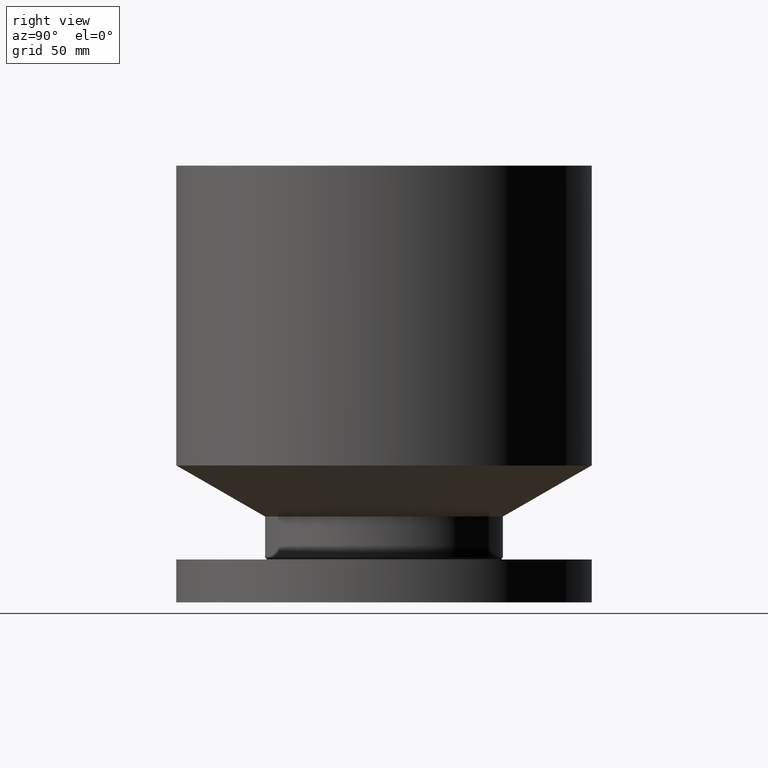
[diagram: clean part render]
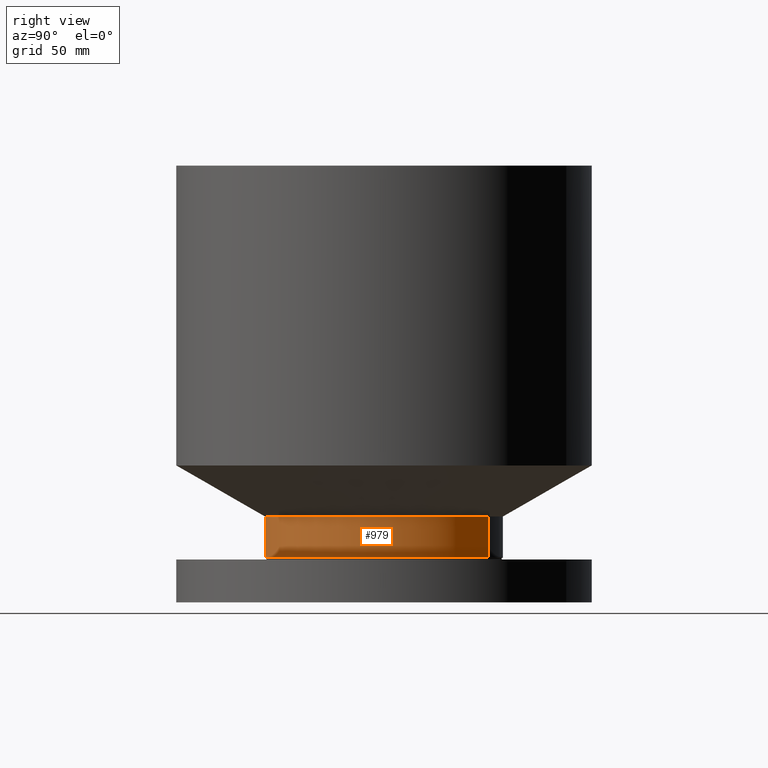
[diagram: same view with one face highlighted and labeled with its STEP entity id]
A machine part, right view. The second image highlights one B-rep face of the part: STEP entity #979.
In plain terms, the highlighted cylindrical surface (partial cylindrical patch) has radius 61.976 mm, axis along (0, 0, -1).
Its self-contained STEP definition (entity closure, byte-faithful):
#741=AXIS2_PLACEMENT_3D('Circle Axis2P3D',#739,#740,$) ;
#952=AXIS2_PLACEMENT_3D('Cylinder Axis2P3D',#949,#950,#951) ;
#963=AXIS2_PLACEMENT_3D('Circle Axis2P3D',#961,#962,$) ;
#736=CARTESIAN_POINT('Vertex',(1.1697983142,2.14130145102,0.918480762117)) ;
#739=CARTESIAN_POINT('Axis2P3D Location',(0.,0.,0.918480762117)) ;
#743=CARTESIAN_POINT('Vertex',(-1.1697983142,-2.14130145102,0.918480762117)) ;
#949=CARTESIAN_POINT('Axis2P3D Location',(0.,0.,4.43750000002)) ;
#954=CARTESIAN_POINT('Line Origine',(1.1697983142,2.14130145102,1.33799038106)) ;
#958=CARTESIAN_POINT('Vertex',(1.1697983142,2.14130145102,1.75750000001)) ;
#961=CARTESIAN_POINT('Axis2P3D Location',(0.,0.,1.75750000001)) ;
#965=CARTESIAN_POINT('Vertex',(-1.1697983142,-2.14130145102,1.75750000001)) ;
#968=CARTESIAN_POINT('Line Origine',(-1.1697983142,-2.14130145102,1.33799038106)) ;
#740=DIRECTION('Axis2P3D Direction',(-0.,0.,0.0393700787402)) ;
#950=DIRECTION('Axis2P3D Direction',(0.,0.,-0.0393700787402)) ;
#951=DIRECTION('Axis2P3D XDirection',(-0.0188750212049,-0.0345504945626,0.)) ;
#955=DIRECTION('Vector Direction',(0.,0.,-0.0393700787402)) ;
#962=DIRECTION('Axis2P3D Direction',(0.,0.,-0.0393700787402)) ;
#969=DIRECTION('Vector Direction',(0.,0.,-0.0393700787402)) ;
#956=VECTOR('Line Direction',#955,0.0393700787402) ;
#970=VECTOR('Line Direction',#969,0.0393700787402) ;
#974=ORIENTED_EDGE('',*,*,#745,.F.) ;
#975=ORIENTED_EDGE('',*,*,#960,.T.) ;
#976=ORIENTED_EDGE('',*,*,#967,.T.) ;
#977=ORIENTED_EDGE('',*,*,#972,.F.) ;
#979=ADVANCED_FACE('PartBody',(#978),#953,.T.) ;
#742=CIRCLE('generated circle',#741,2.44000000001) ;
#964=CIRCLE('generated circle',#963,2.44000000001) ;
#953=CYLINDRICAL_SURFACE('generated cylinder',#952,2.44000000001) ;
#745=EDGE_CURVE('',#737,#744,#742,.F.) ;
#960=EDGE_CURVE('',#737,#959,#957,.F.) ;
#967=EDGE_CURVE('',#959,#966,#964,.T.) ;
#972=EDGE_CURVE('',#744,#966,#971,.F.) ;
#973=EDGE_LOOP('',(#974,#975,#976,#977)) ;
#978=FACE_OUTER_BOUND('',#973,.T.) ;
#957=LINE('Line',#954,#956) ;
#971=LINE('Line',#968,#970) ;
#737=VERTEX_POINT('',#736) ;
#744=VERTEX_POINT('',#743) ;
#959=VERTEX_POINT('',#958) ;
#966=VERTEX_POINT('',#965) ;